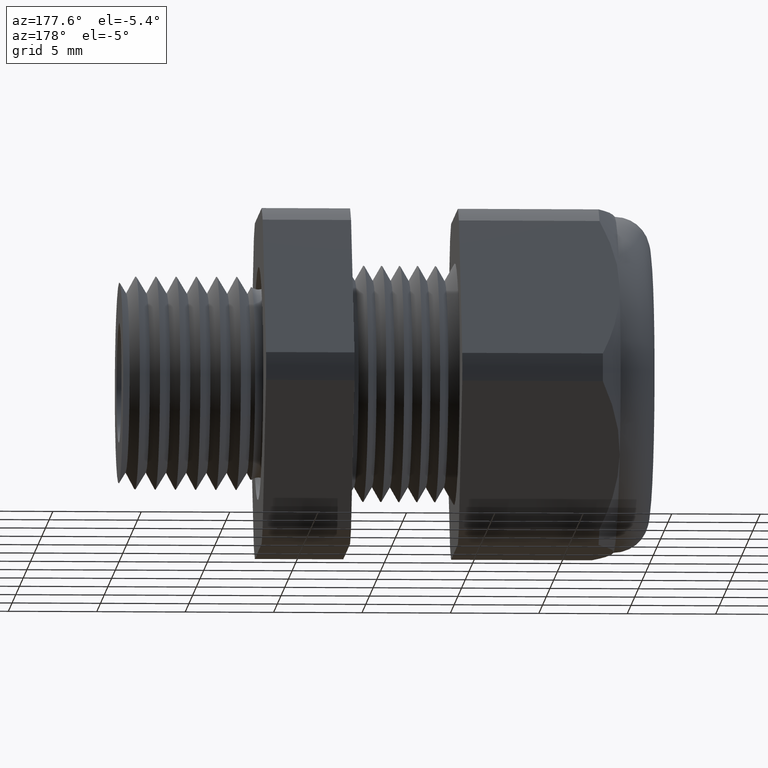
[diagram: clean part render]
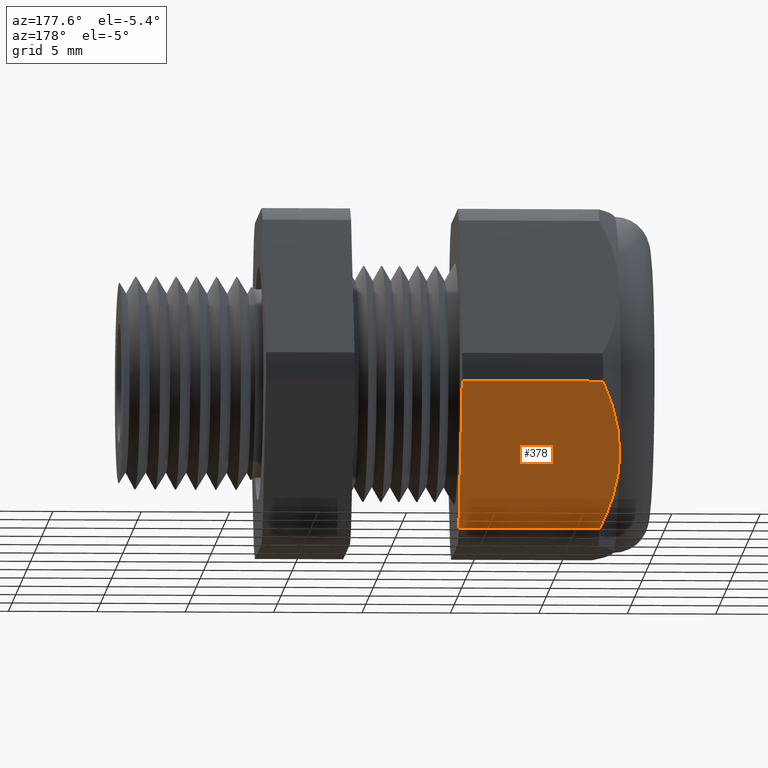
[diagram: same view with one face highlighted and labeled with its STEP entity id]
A machine part, auxiliary view. The second image highlights one B-rep face of the part: STEP entity #378.
In plain terms, the highlighted planar face has unit normal (0, 0.866, -0.5).
Its self-contained STEP definition (entity closure, byte-faithful):
#195 = VERTEX_POINT ( 'NONE', #1083 ) ;
#355 = VERTEX_POINT ( 'NONE', #1376 ) ;
#356 = VERTEX_POINT ( 'NONE', #1375 ) ;
#361 = ORIENTED_EDGE ( 'NONE', *, *, #376, .T. ) ;
#362 = EDGE_LOOP ( 'NONE', ( #361, #2968, #2969, #2965, #2962 ) ) ;
#376 = EDGE_CURVE ( 'NONE', #356, #355, #1454, .T. ) ;
#378 = ADVANCED_FACE ( 'NONE', ( #1450 ), #1449, .T. ) ;
#1083 = CARTESIAN_POINT ( 'NONE',  ( -1.101259842519684900, 0.3247595264191644500, -0.1874999999999999700 ) ) ;
#1375 = CARTESIAN_POINT ( 'NONE',  ( -0.7469291338582678700, 0.2344281053908204300, -0.3439586107409878200 ) ) ;
#1376 = CARTESIAN_POINT ( 'NONE',  ( -1.060009842519685100, 0.2344281053908204300, -0.3439586107409878200 ) ) ;
#1445 = DIRECTION ( 'NONE',  ( 0.0000000000000000000, 0.4999999999999998900, 0.8660254037844386000 ) ) ;
#1446 = DIRECTION ( 'NONE',  ( 0.0000000000000000000, 0.8660254037844387100, -0.4999999999999999400 ) ) ;
#1447 = CARTESIAN_POINT ( 'NONE',  ( 0.0000000000000000000, 0.4150909474475088500, -0.03104138925901205700 ) ) ;
#1448 = AXIS2_PLACEMENT_3D ( 'NONE', #1447, #1446, #1445 ) ;
#1449 = PLANE ( 'NONE',  #1448 ) ;
#1450 = FACE_OUTER_BOUND ( 'NONE', #362, .T. ) ;
#1451 = DIRECTION ( 'NONE',  ( -1.000000000000000000, 0.0000000000000000000, 0.0000000000000000000 ) ) ;
#1452 = VECTOR ( 'NONE', #1451, 39.37007874015748100 ) ;
#1453 = CARTESIAN_POINT ( 'NONE',  ( 0.0000000000000000000, 0.2344281053908204300, -0.3439586107409878200 ) ) ;
#1454 = LINE ( 'NONE', #1453, #1452 ) ;
#2342 = CARTESIAN_POINT ( 'NONE',  ( 0.0000000000000000000, 0.4150909474475088500, -0.03104138925901205700 ) ) ;
#2343 = LINE ( 'NONE', #2342, #2400 ) ;
#2344 = DIRECTION ( 'NONE',  ( 0.0000000000000000000, 0.4999999999999998900, 0.8660254037844386000 ) ) ;
#2345 = VECTOR ( 'NONE', #2344, 39.37007874015748100 ) ;
#2346 = CARTESIAN_POINT ( 'NONE',  ( -0.7469291338582678700, 0.3921345264191645800, -0.07080307684004692700 ) ) ;
#2347 = LINE ( 'NONE', #2346, #2345 ) ;
#2354 = CARTESIAN_POINT ( 'NONE',  ( -0.7469291338582678700, 0.4150909474475088500, -0.03104138925901206400 ) ) ;
#2380 = CARTESIAN_POINT ( 'NONE',  ( -1.101259842519684900, 0.3247595264191644500, -0.1874999999999999700 ) ) ;
#2381 = CARTESIAN_POINT ( 'NONE',  ( -1.101259842519684500, 0.3169392765875834700, -0.2010450700361804100 ) ) ;
#2382 = CARTESIAN_POINT ( 'NONE',  ( -1.100255793581167000, 0.3090355397383389200, -0.2147347438287266200 ) ) ;
#2383 = CARTESIAN_POINT ( 'NONE',  ( -1.096422317636960100, 0.2935887246993246200, -0.2414894122914182400 ) ) ;
#2384 = CARTESIAN_POINT ( 'NONE',  ( -1.093600508221610900, 0.2859780998530066000, -0.2546714012025871300 ) ) ;
#2385 = CARTESIAN_POINT ( 'NONE',  ( -1.082794409625180300, 0.2634379006963008000, -0.2937121713547227700 ) ) ;
#2386 = CARTESIAN_POINT ( 'NONE',  ( -1.072483809490952800, 0.2487982124163726500, -0.3190688552625288700 ) ) ;
#2387 = CARTESIAN_POINT ( 'NONE',  ( -1.060009842519685100, 0.2344281053908204300, -0.3439586107409878200 ) ) ;
#2390 = B_SPLINE_CURVE_WITH_KNOTS ( 'NONE', 3,
 ( #2387, #2386, #2385, #2384, #2383, #2382, #2381, #2380 ),
 .UNSPECIFIED., .F., .F.,
 ( 4, 2, 2, 4 ),
 ( 2.483253706007067000E-007, 0.002355112334987628700, 0.003532544339796142900, 0.004709976344604658400 ),
 .UNSPECIFIED. ) ;
#2391 = CARTESIAN_POINT ( 'NONE',  ( -1.060009842519684900, 0.4150909474475088500, -0.03104138925901207800 ) ) ;
#2392 = CARTESIAN_POINT ( 'NONE',  ( -1.072499265138041400, 0.4007030353962317000, -0.05596198394665670400 ) ) ;
#2393 = CARTESIAN_POINT ( 'NONE',  ( -1.082955282991275900, 0.3858321107701057100, -0.08171918095463408200 ) ) ;
#2394 = CARTESIAN_POINT ( 'NONE',  ( -1.097313831997348800, 0.3557072427410923900, -0.1338969829521925400 ) ) ;
#2395 = CARTESIAN_POINT ( 'NONE',  ( -1.101259842519684500, 0.3403893008356697100, -0.1604284365997729100 ) ) ;
#2396 = CARTESIAN_POINT ( 'NONE',  ( -1.101259842519684900, 0.3247595264191644500, -0.1874999999999999700 ) ) ;
#2397 = B_SPLINE_CURVE_WITH_KNOTS ( 'NONE', 3,
 ( #2396, #2395, #2394, #2393, #2392, #2391 ),
 .UNSPECIFIED., .F., .F.,
 ( 4, 2, 4 ),
 ( 0.004709976344604658400, 0.007063225540252131500, 0.009416474735899604500 ),
 .UNSPECIFIED. ) ;
#2398 = CARTESIAN_POINT ( 'NONE',  ( -1.060009842519684900, 0.4150909474475088500, -0.03104138925901207800 ) ) ;
#2399 = DIRECTION ( 'NONE',  ( -1.000000000000000000, 0.0000000000000000000, 0.0000000000000000000 ) ) ;
#2400 = VECTOR ( 'NONE', #2399, 39.37007874015748100 ) ;
#2961 = VERTEX_POINT ( 'NONE', #2354 ) ;
#2962 = ORIENTED_EDGE ( 'NONE', *, *, #2964, .F. ) ;
#2964 = EDGE_CURVE ( 'NONE', #356, #2961, #2347, .T. ) ;
#2965 = ORIENTED_EDGE ( 'NONE', *, *, #2966, .F. ) ;
#2966 = EDGE_CURVE ( 'NONE', #2961, #2967, #2343, .T. ) ;
#2967 = VERTEX_POINT ( 'NONE', #2398 ) ;
#2968 = ORIENTED_EDGE ( 'NONE', *, *, #2971, .T. ) ;
#2969 = ORIENTED_EDGE ( 'NONE', *, *, #2970, .T. ) ;
#2970 = EDGE_CURVE ( 'NONE', #195, #2967, #2397, .T. ) ;
#2971 = EDGE_CURVE ( 'NONE', #355, #195, #2390, .T. ) ;